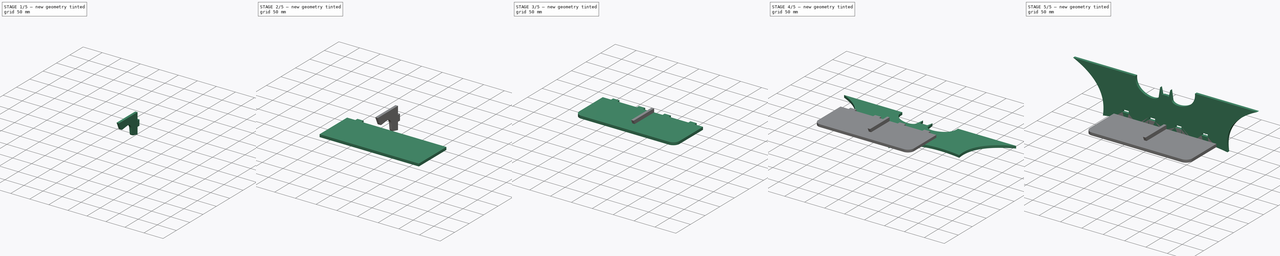
[diagram: build sequence overview — one tinted view per stage of 5, left to right]
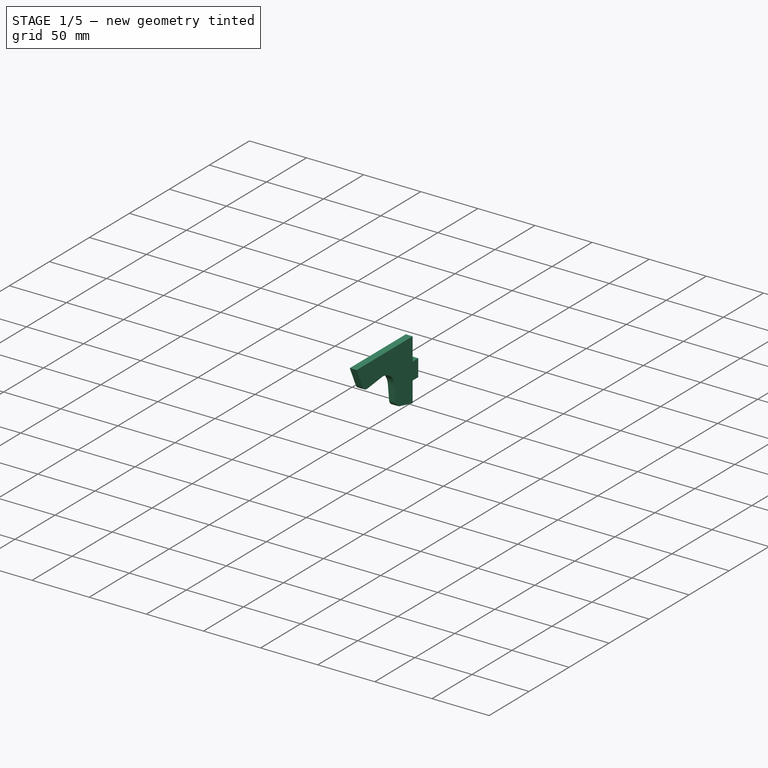
[diagram: stage 1 of 5 — iso view after this stage's code; geometry added in this stage tinted green]
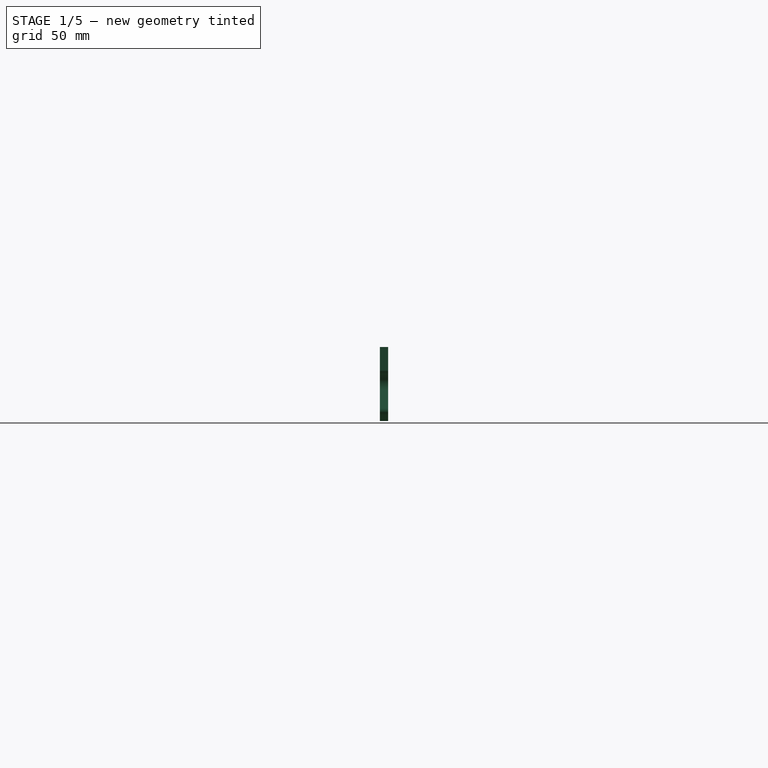
[diagram: stage 1 of 5 — front view after this stage's code; geometry added in this stage tinted green]
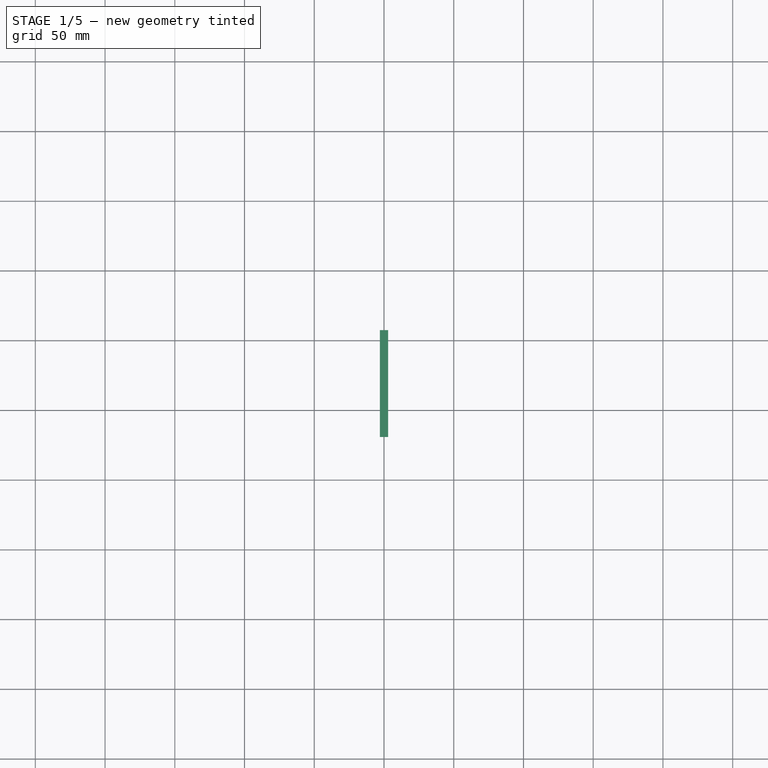
[diagram: stage 1 of 5 — top view after this stage's code; geometry added in this stage tinted green]
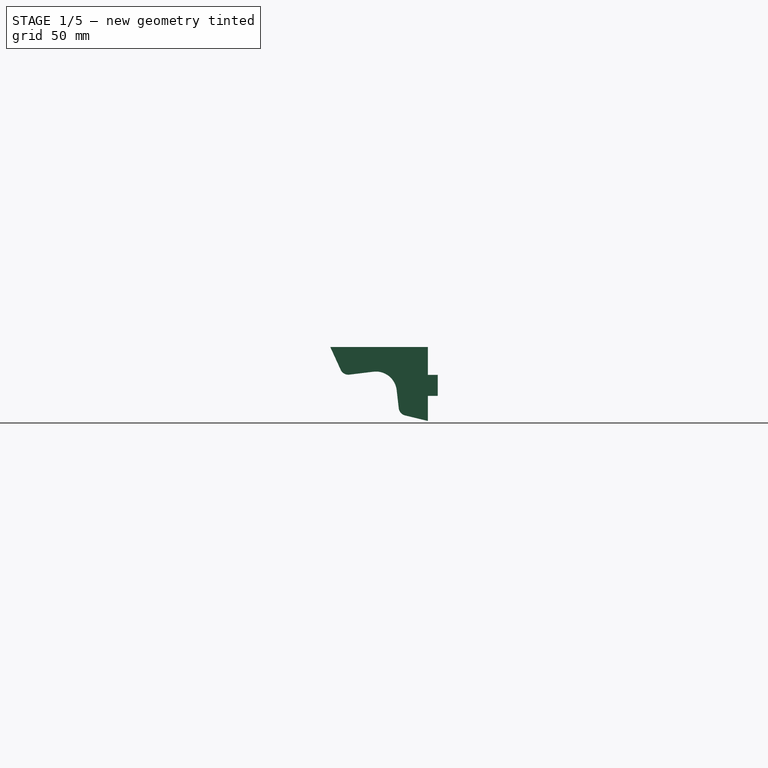
[diagram: stage 1 of 5 — right view after this stage's code; geometry added in this stage tinted green]
FCSTD DOCUMENT  (FreeCAD 0.18R4 (GitTag))
Label: Repisa Batman
License: All rights reserved
LicenseURL: http://en.wikipedia.org/wiki/All_rights_reserved
objects: Sketcher::SketchObject×9, PartDesign::Body×7, PartDesign::Pad×4, PartDesign::Pocket×3, PartDesign::Fillet×3, PartDesign::FeatureBase×3, Part::Part2DObjectPython×3, PartDesign::LinearPattern×2, App::Part×2, PartDesign::Mirrored×1, Part::Feature×1, Part::FeaturePython×1
note: 44 computed .brp shape members not serialized (recipe doc carries the construction recipe); baked Part::Feature solids carry a one-line shape summary decoded from their .brp

FEATURE [Sketcher::SketchObject] Sketch006
  MapMode = 5
  Placement = pos=(0,0,0) rot=(0.57735,0.57735,0.57735;2.0944rad)
  Support = -> [YZ_Plane004]
  sketch-geometry (10):
    g0: LineSegment StartX=-70 StartY=65 StartZ=0 EndX=-60.7345 EndY=44.672 EndZ=0
    g1: LineSegment StartX=-60.7345 StartY=44.672 StartZ=0 EndX=-24.1327 EndY=49.1456 EndZ=0
    g2: LineSegment StartX=-24.1327 StartY=49.1456 StartZ=0 EndX=-20.4455 EndY=16.9355 EndZ=0
    g3: LineSegment StartX=-20.4455 StartY=16.9355 StartZ=0 EndX=0 EndY=12 EndZ=0
    g4: LineSegment StartX=0 StartY=12 StartZ=0 EndX=0 EndY=30 EndZ=0
    g5: LineSegment StartX=0 StartY=65 StartZ=0 EndX=-70 EndY=65 EndZ=0
    g6: LineSegment StartX=0 StartY=45 StartZ=0 EndX=7 EndY=45 EndZ=0
    g7: LineSegment StartX=7 StartY=45 StartZ=0 EndX=7 EndY=30 EndZ=0
    g8: LineSegment StartX=7 StartY=30 StartZ=0 EndX=0 EndY=30 EndZ=0
    g9: LineSegment StartX=0 StartY=45 StartZ=0 EndX=0 EndY=65 EndZ=0
  constraints (23):
    c: Coincident(g1,g2)
    c: Coincident(g2,g3)
    c: Coincident(g3,g4)
    c: PointOnObject(g9,g-2)
    c: Vertical(g4)
    c: Coincident(g9,g5)
    c: Coincident(g5,g0)
    c: Horizontal(g5)
    c: DistanceY(g-1,g9) = 65
    c: DistanceX(g5,g5) = 70
    c: Horizontal(g6)
    c: Coincident(g6,g7)
    c: Vertical(g7)
    c: Coincident(g7,g8)
    c: Horizontal(g8)
    c: DistanceY(g7,g7) = 15
    c: Coincident(g4,g8)
    c: Coincident(g9,g6)
    c: Tangent(g4,g9)
    c: DistanceY(g-1,g6) = 45
    c: Coincident(g0,g1)
    c: DistanceX(g6,g6) = 7
    c: DistanceY(g-1,g3) = 12
FEATURE [PartDesign::Pad] Pad003
  Length = 6
  Length2 = 100
  Midplane = true
  Placement = pos=(0,0,0) rot=(0.57735,0.57735,0.57735;2.0944rad)
  Profile = -> Sketch006
  Refine = true
  Type = 0
FEATURE [PartDesign::Fillet] Fillet001
  Base = -> Pad003 [Edge11]
  BaseFeature = -> Pad003
  Placement = pos=(0,0,0) rot=(0.57735,0.57735,0.57735;2.0944rad)
  Radius = 15
FEATURE [PartDesign::Fillet] Fillet002
  Base = -> Fillet001 [Edge3,Edge27]
  BaseFeature = -> Fillet001
  Placement = pos=(0,0,0) rot=(0.57735,0.57735,0.57735;2.0944rad)
  Radius = 6
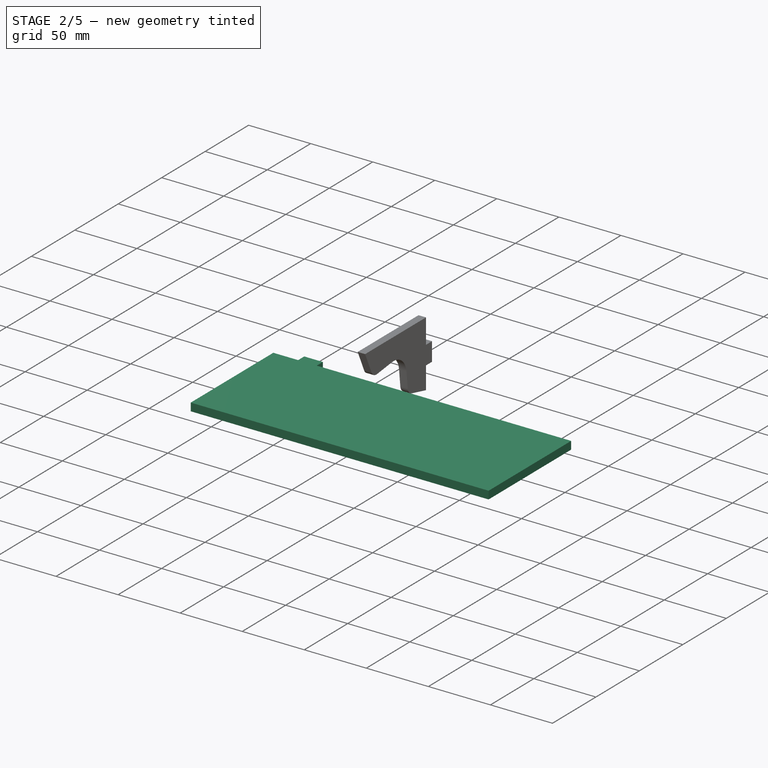
[diagram: stage 2 of 5 — iso view after this stage's code; geometry added in this stage tinted green]
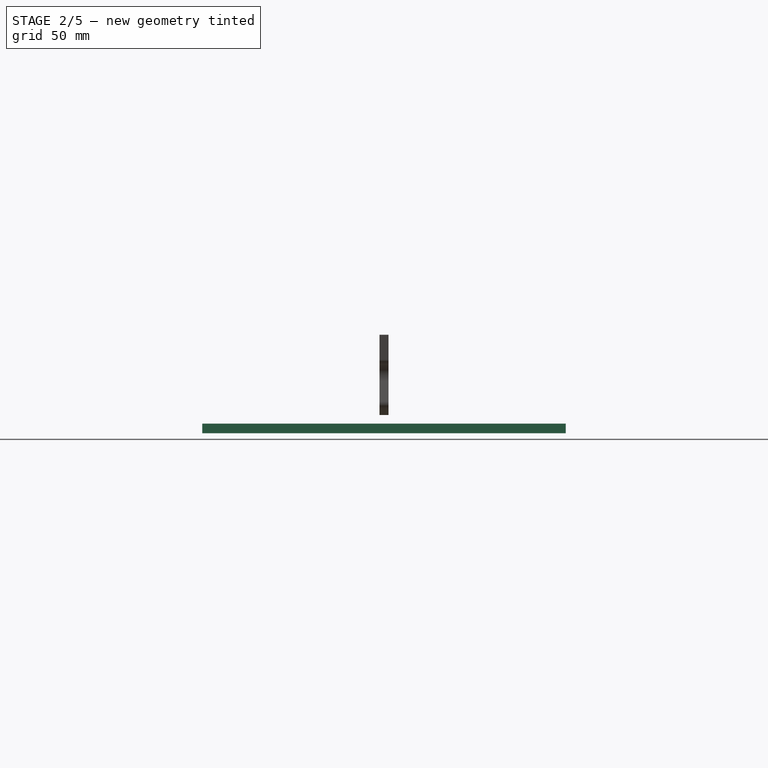
[diagram: stage 2 of 5 — front view after this stage's code; geometry added in this stage tinted green]
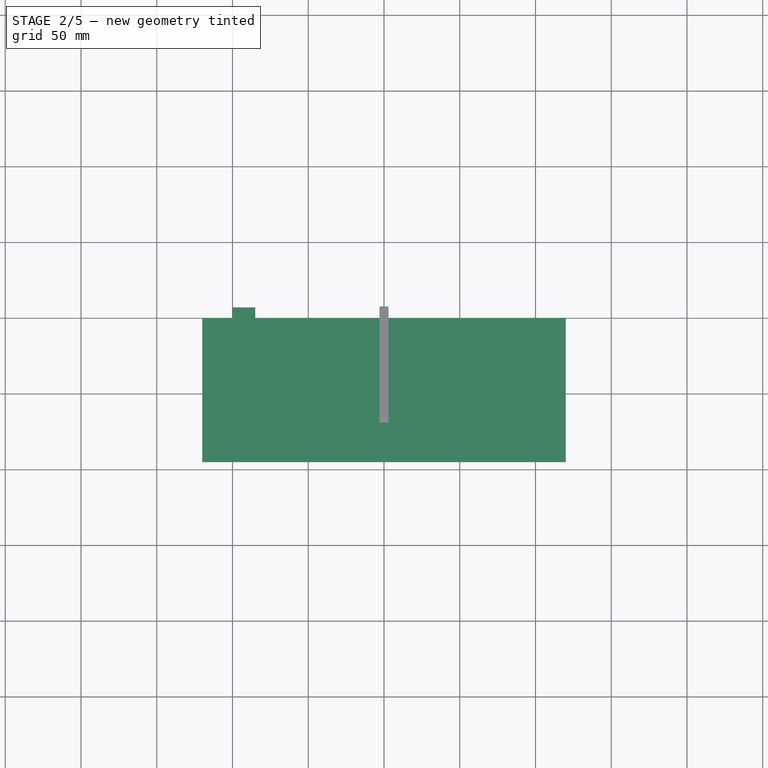
[diagram: stage 2 of 5 — top view after this stage's code; geometry added in this stage tinted green]
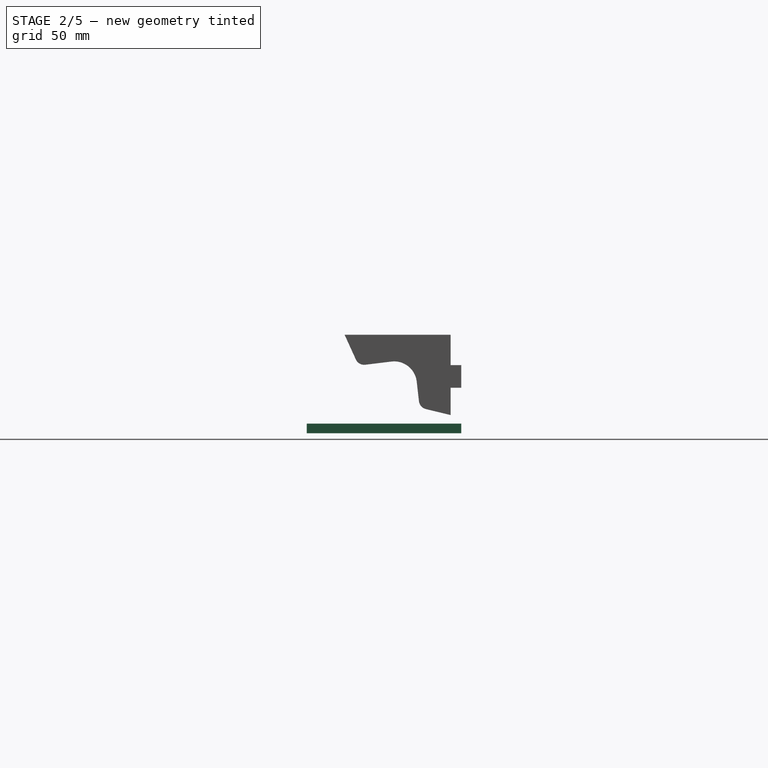
[diagram: stage 2 of 5 — right view after this stage's code; geometry added in this stage tinted green]
FEATURE [Sketcher::SketchObject] Sketch002
  MapMode = 5
  Support = -> [XY_Plane003]
  sketch-geometry (4):
    g0: LineSegment StartX=-120 StartY=0 StartZ=0 EndX=120 EndY=0 EndZ=0
    g1: LineSegment StartX=120 StartY=0 StartZ=0 EndX=120 EndY=-95 EndZ=0
    g2: LineSegment StartX=120 StartY=-95 StartZ=0 EndX=-120 EndY=-95 EndZ=0
    g3: LineSegment StartX=-120 StartY=-95 StartZ=0 EndX=-120 EndY=0 EndZ=0
  constraints (11):
    c: Coincident(g0,g1)
    c: Coincident(g1,g2)
    c: Coincident(g2,g3)
    c: Coincident(g3,g0)
    c: Horizontal(g0)
    c: Horizontal(g2)
    c: Vertical(g1)
    c: Vertical(g3)
    c: Symmetric(g0,g0,g-1)
    c: DistanceX(g0,g0) = 240
    c: DistanceY(g3,g3) = 95
FEATURE [PartDesign::Pad] Pad001
  Length = 6.35
  Length2 = 100
  Profile = -> Sketch002
  Refine = true
  Type = 0
FEATURE [Sketcher::SketchObject] Sketch003
  MapMode = 5
  Support = -> [XY_Plane003]
  sketch-geometry (4):
    g0: LineSegment StartX=-100 StartY=0 StartZ=0 EndX=-85 EndY=0 EndZ=0
    g1: LineSegment StartX=-85 StartY=0 StartZ=0 EndX=-85 EndY=7 EndZ=0
    g2: LineSegment StartX=-85 StartY=7 StartZ=0 EndX=-100 EndY=7 EndZ=0
    g3: LineSegment StartX=-100 StartY=7 StartZ=0 EndX=-100 EndY=0 EndZ=0
  constraints (12):
    c: Coincident(g0,g1)
    c: Coincident(g1,g2)
    c: Coincident(g2,g3)
    c: Coincident(g3,g0)
    c: Horizontal(g0)
    c: Horizontal(g2)
    c: Vertical(g1)
    c: Vertical(g3)
    c: PointOnObject(g0,g-1)
    c: DistanceY(g3,g3) = 7
    c: DistanceX(g2,g2) = 15
    c: DistanceX(g2,g-1) = 100
FEATURE [PartDesign::Pad] Pad002
  BaseFeature = -> Pad001
  Length = 6.35
  Length2 = 100
  Profile = -> Sketch003
  Refine = true
  Type = 0
FEATURE [PartDesign::Body] Body003  label="batman"
  BaseFeature = -> Body001
  Group = -> [Clone]
  Origin = -> Origin006
  Placement = pos=(0,1e-15,3) rot=(-1,0,0;1.5708rad)
  Tip = -> Clone
FEATURE [PartDesign::FeatureBase] Clone002
  BaseFeature = -> Body002
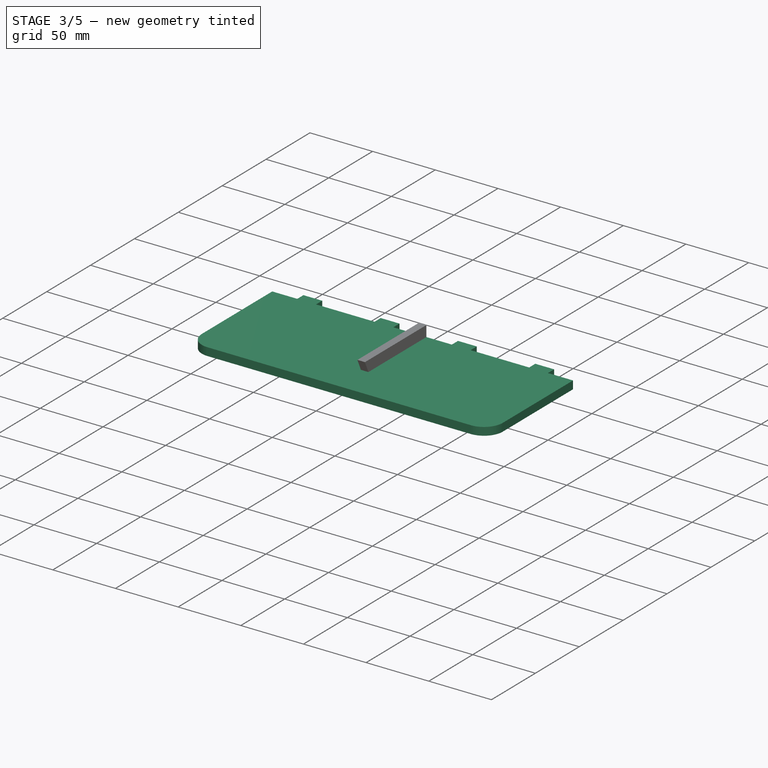
[diagram: stage 3 of 5 — iso view after this stage's code; geometry added in this stage tinted green]
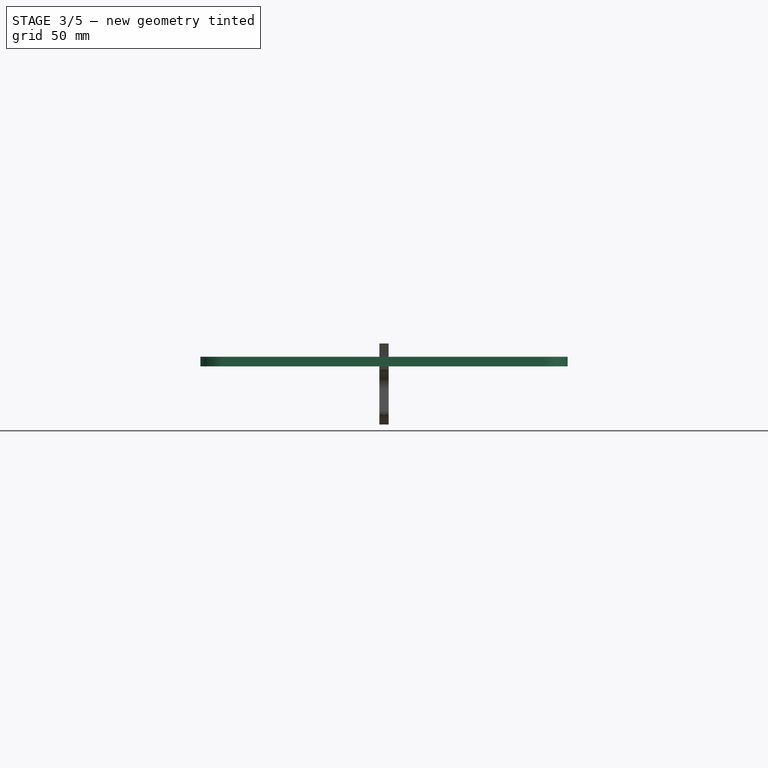
[diagram: stage 3 of 5 — front view after this stage's code; geometry added in this stage tinted green]
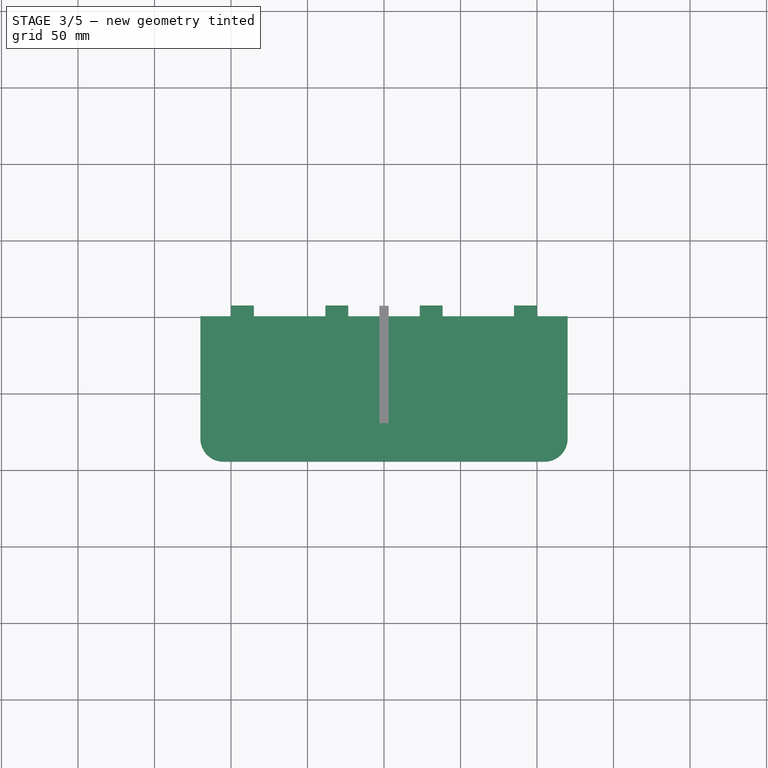
[diagram: stage 3 of 5 — top view after this stage's code; geometry added in this stage tinted green]
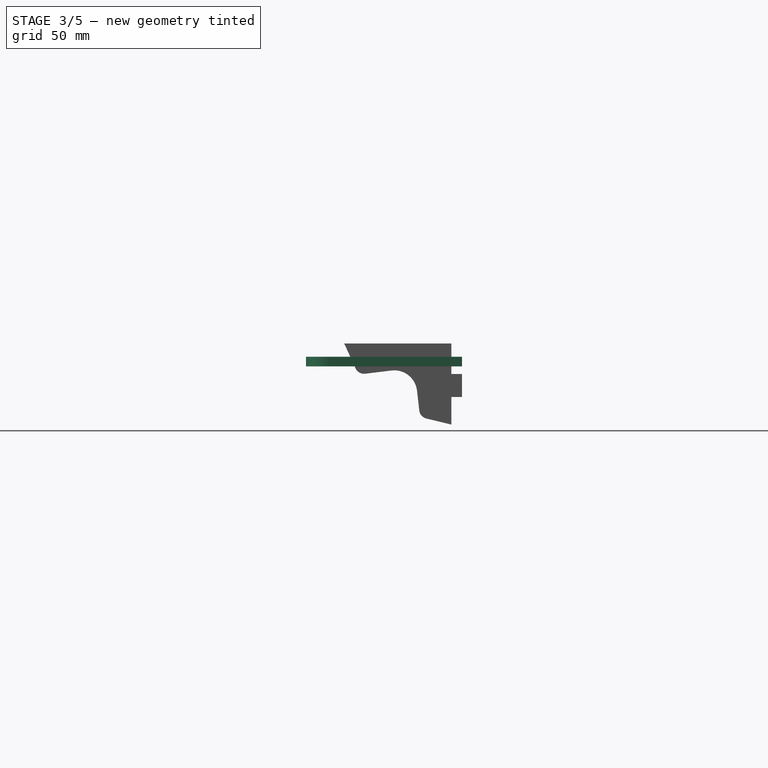
[diagram: stage 3 of 5 — right view after this stage's code; geometry added in this stage tinted green]
FEATURE [PartDesign::LinearPattern] LinearPattern
  BaseFeature = -> Pad002
  Direction = -> Sketch003 [H_Axis]
  Length = 185
  Occurrences = 4
  Originals = -> [Pad002]
  Refine = true
FEATURE [PartDesign::Body] Body005  label="soporte001"
  BaseFeature = -> Body002
  Group = -> [Clone002]
  Origin = -> Origin008
  Placement = pos=(-154,165.837,2e-14) rot=(0.707107,0,0.707107;3.14159rad)
  Tip = -> Clone002
FEATURE [Part::Feature] path4
  Placement = pos=(-86,-5e-14,223) rot=(1,0,0;1.5708rad)
  shape: bbox 173.4 x 5.082e-07 x 58.82 mm, 0 faces, 0 solids (baked)
FEATURE [Part::FeaturePython] Scale  # Draft clone (typed FeaturePython)
  Fuse = false
  Objects = -> [path4]
  Placement = pos=(-216,-1.24e-13,559) rot=(1,0,0;1.5708rad)
  Scale = (2.5,2.5,2.5)
FEATURE [PartDesign::Pocket] Pocket
  BaseFeature = -> LinearPattern
  Length = 6.35
  Length2 = 100
  Profile = -> Sketch004
  Refine = true
  Type = 0
FEATURE [PartDesign::Fillet] Fillet
  Base = -> Pocket [Edge49,Edge51]
  BaseFeature = -> Pocket
  Radius = 15
FEATURE [PartDesign::Body] Body  label="barra"
  Group = -> [Sketch002,Pad001,Sketch003,Pad002,LinearPattern,Sketch004,Pocket,Fillet]
  Origin = -> Origin003
  Placement = pos=(0,0,65) rot=(0,0,1;0rad)
  Tip = -> Fillet
FEATURE [App::Part] Part  label="Repisa Batman"
  Group = -> [Body001,Body,Body002,path4,Scale]
  Origin = -> Origin
FEATURE [PartDesign::FeatureBase] Clone001
  BaseFeature = -> Body
  Placement = pos=(0,0,50) rot=(0,0,1;0rad)
FEATURE [PartDesign::Body] Body004  label="barra001"
  BaseFeature = -> Body
  Group = -> [Clone001]
  Origin = -> Origin007
  Placement = pos=(44,254,-53) rot=(0,0,1;0rad)
  Tip = -> Clone001
FEATURE [App::Part] Part001  label="router"
  Group = -> [Body003,Body004,Body005]
  Origin = -> Origin005
FEATURE [Part::Part2DObjectPython] Shape2DView  # Draft 2D object (typed FeaturePython)
  Base = -> Body003
  HiddenLines = false
  InPlace = true
  Projection = (0,0,1)
  ProjectionMode = 0
  SegmentLength = 0.05
  Tessellation = false
  VisibleOnly = false
FEATURE [Part::Part2DObjectPython] Shape2DView001  # Draft 2D object (typed FeaturePython)
  Base = -> Body004
  HiddenLines = false
  InPlace = true
  Projection = (0,0,1)
  ProjectionMode = 0
  SegmentLength = 0.05
  Tessellation = false
  VisibleOnly = false
FEATURE [Part::Part2DObjectPython] Shape2DView002  # Draft 2D object (typed FeaturePython)
  Base = -> Body005
  HiddenLines = false
  InPlace = true
  Projection = (0,0,1)
  ProjectionMode = 0
  SegmentLength = 0.05
  Tessellation = false
  VisibleOnly = false
FEATURE [Sketcher::SketchObject] Sketch009
  sketch-geometry (71):
    g0: BSplineCurve PolesCount=3 KnotsCount=2 Degree=2 IsPeriodic=0
    g1: BSplineCurve PolesCount=3 KnotsCount=2 Degree=2 IsPeriodic=0
    g2: BSplineCurve PolesCount=3 KnotsCount=2 Degree=2 IsPeriodic=0
    g3: BSplineCurve PolesCount=3 KnotsCount=2 Degree=2 IsPeriodic=0
    g4: LineSegment StartX=215.559 StartY=149.145 StartZ=0 EndX=69.6461 EndY=149.145 EndZ=0
    g5: LineSegment StartX=-215.559 StartY=149.145 StartZ=0 EndX=-69.6461 EndY=149.145 EndZ=0
    g6: BSplineCurve PolesCount=4 KnotsCount=2 Degree=3 IsPeriodic=0
    g7: BSplineCurve PolesCount=4 KnotsCount=2 Degree=3 IsPeriodic=0
    g8: LineSegment StartX=15.1344 StartY=119.56 StartZ=0 EndX=11.8631 EndY=140.687 EndZ=0
    g9: LineSegment StartX=-15.1344 StartY=119.56 StartZ=0 EndX=-11.8631 EndY=140.687 EndZ=0
    g10: LineSegment StartX=11.8631 StartY=140.687 StartZ=0 EndX=8.29383 EndY=125.55 EndZ=0
    g11: LineSegment StartX=-11.8631 StartY=140.687 StartZ=0 EndX=-8.29383 EndY=125.55 EndZ=0
    g12: BSplineCurve PolesCount=3 KnotsCount=2 Degree=2 IsPeriodic=0
    g13: BSplineCurve PolesCount=3 KnotsCount=2 Degree=2 IsPeriodic=0
    g14: LineSegment StartX=-100 StartY=65 StartZ=0 EndX=-100 EndY=70.7 EndZ=0
    g15: LineSegment StartX=-85.3 StartY=65 StartZ=0 EndX=-100 EndY=65 EndZ=0
    g16: LineSegment StartX=-100 StartY=70.7 StartZ=0 EndX=-85.3 EndY=70.7 EndZ=0
    g17: LineSegment StartX=-85.3 StartY=70.7 StartZ=0 EndX=-85.3 EndY=65 EndZ=0
    g18: Circle CenterX=0 CenterY=55 CenterZ=0 NormalX=0 NormalY=0 NormalZ=1 AngleXU=0 Radius=1.8
    g19: LineSegment StartX=-38.3333 StartY=65 StartZ=0 EndX=-38.3333 EndY=70.7 EndZ=0
    g20: LineSegment StartX=-23.6333 StartY=65 StartZ=0 EndX=-38.3333 EndY=65 EndZ=0
    g21: LineSegment StartX=-38.3333 StartY=70.7 StartZ=0 EndX=-23.6333 EndY=70.7 EndZ=0
    g22: LineSegment StartX=-23.6333 StartY=70.7 StartZ=0 EndX=-23.6333 EndY=65 EndZ=0
    g23: LineSegment StartX=-2.85 StartY=30.3 StartZ=0 EndX=-2.85 EndY=45 EndZ=0
    g24: LineSegment StartX=2.85 StartY=30.3 StartZ=0 EndX=-2.85 EndY=30.3 EndZ=0
    g25: LineSegment StartX=2.85 StartY=45 StartZ=0 EndX=2.85 EndY=30.3 EndZ=0
    g26: LineSegment StartX=-2.85 StartY=45 StartZ=0 EndX=2.85 EndY=45 EndZ=0
    g27: LineSegment StartX=23.3333 StartY=65 StartZ=0 EndX=23.3333 EndY=70.7 EndZ=0
    g28: LineSegment StartX=38.0333 StartY=65 StartZ=0 EndX=23.3333 EndY=65 EndZ=0
    g29: LineSegment StartX=23.3333 StartY=70.7 StartZ=0 EndX=38.0333 EndY=70.7 EndZ=0
    g30: LineSegment StartX=38.0333 StartY=70.7 StartZ=0 EndX=38.0333 EndY=65 EndZ=0
    g31: LineSegment StartX=85 StartY=65 StartZ=0 EndX=85 EndY=70.7 EndZ=0
    g32: LineSegment StartX=99.7 StartY=65 StartZ=0 EndX=85 EndY=65 EndZ=0
    g33: LineSegment StartX=85 StartY=70.7 StartZ=0 EndX=99.7 EndY=70.7 EndZ=0
    g34: LineSegment StartX=99.7 StartY=70.7 StartZ=0 EndX=99.7 EndY=65 EndZ=0
    g35: LineSegment StartX=-108.795 StartY=222.208 StartZ=0 EndX=-106.688 EndY=204.973 EndZ=0
    g36: ArcOfCircle CenterX=-102.839 CenterY=222.936 CenterZ=0 NormalX=0 NormalY=0 NormalZ=1 AngleXU=1.5708 Radius=6 StartAngle=0.427665 EndAngle=1.69242
    g37: ArcOfCircle CenterX=-121.577 CenterY=203.153 CenterZ=0 NormalX=0 NormalY=0 NormalZ=1 AngleXU=1.5708 Radius=15 StartAngle=3.25557 EndAngle=4.83401
    g38: LineSegment StartX=-89 StartY=235.837 StartZ=0 EndX=-105.327 EndY=228.395 EndZ=0
    g39: LineSegment StartX=-119.871 StartY=188.251 StartZ=0 EndX=-132.898 EndY=186.76 EndZ=0
    g40: LineSegment StartX=-89 StartY=165.837 StartZ=0 EndX=-89 EndY=235.837 EndZ=0
    g41: ArcOfCircle CenterX=-132.216 CenterY=180.798 CenterZ=0 NormalX=0 NormalY=0 NormalZ=1 AngleXU=1.5708 Radius=6 StartAngle=0.113977 EndAngle=1.33393
    g42: LineSegment StartX=-109 StartY=165.837 StartZ=0 EndX=-89 EndY=165.837 EndZ=0
    g43: LineSegment StartX=-138.048 StartY=182.206 StartZ=0 EndX=-142 EndY=165.837 EndZ=0
    g44: LineSegment StartX=-109 StartY=165.837 StartZ=0 EndX=-109 EndY=158.837 EndZ=0
    g45: LineSegment StartX=-142 StartY=165.837 StartZ=0 EndX=-124 EndY=165.837 EndZ=0
    g46: LineSegment StartX=-109 StartY=158.837 StartZ=0 EndX=-124 EndY=158.837 EndZ=0
    g47: LineSegment StartX=-124 StartY=158.837 StartZ=0 EndX=-124 EndY=165.837 EndZ=0
    g48: LineSegment StartX=-76 StartY=174 StartZ=0 EndX=-76 EndY=254 EndZ=0
    g49: ArcOfCircle CenterX=-61 CenterY=174 CenterZ=0 NormalX=0 NormalY=0 NormalZ=1 AngleXU=-1.5708 Radius=15 StartAngle=4.71239 EndAngle=6.28319
    g50: LineSegment StartX=-76 StartY=254 StartZ=0 EndX=-56 EndY=254 EndZ=0
    g51: LineSegment StartX=149 StartY=159 StartZ=0 EndX=-61 EndY=159 EndZ=0
    g52: LineSegment StartX=-56 StartY=261 StartZ=0 EndX=-56 EndY=254 EndZ=0
    g53: ArcOfCircle CenterX=149 CenterY=174 CenterZ=0 NormalX=0 NormalY=0 NormalZ=1 AngleXU=-1.5708 Radius=15 StartAngle=0 EndAngle=1.5708
    g54: LineSegment StartX=-41 StartY=261 StartZ=0 EndX=-56 EndY=261 EndZ=0
    g55: LineSegment StartX=164 StartY=254 StartZ=0 EndX=164 EndY=174 EndZ=0
    g56: LineSegment StartX=-41 StartY=254 StartZ=0 EndX=-41 EndY=261 EndZ=0
    g57: LineSegment StartX=144 StartY=254 StartZ=0 EndX=164 EndY=254 EndZ=0
    g58: LineSegment StartX=-41 StartY=254 StartZ=0 EndX=5.66667 EndY=254 EndZ=0
    g59: LineSegment StartX=144 StartY=254 StartZ=0 EndX=144 EndY=261 EndZ=0
    g60: LineSegment StartX=5.66667 StartY=261 StartZ=0 EndX=5.66667 EndY=254 EndZ=0
    g61: LineSegment StartX=144 StartY=261 StartZ=0 EndX=129 EndY=261 EndZ=0
    g62: LineSegment StartX=20.6667 StartY=261 StartZ=0 EndX=5.66667 EndY=261 EndZ=0
    g63: LineSegment StartX=129 StartY=261 StartZ=0 EndX=129 EndY=254 EndZ=0
    g64: LineSegment StartX=20.6667 StartY=254 StartZ=0 EndX=20.6667 EndY=261 EndZ=0
    g65: LineSegment StartX=82.3333 StartY=254 StartZ=0 EndX=129 EndY=254 EndZ=0
    g66: LineSegment StartX=20.6667 StartY=254 StartZ=0 EndX=67.3333 EndY=254 EndZ=0
    g67: LineSegment StartX=82.3333 StartY=254 StartZ=0 EndX=82.3333 EndY=261 EndZ=0
    g68: LineSegment StartX=67.3333 StartY=261 StartZ=0 EndX=67.3333 EndY=254 EndZ=0
    g69: LineSegment StartX=82.3333 StartY=261 StartZ=0 EndX=67.3333 EndY=261 EndZ=0
    g70: Circle CenterX=44 CenterY=239 CenterZ=0 NormalX=0 NormalY=0 NormalZ=1 AngleXU=0 Radius=1.8
FEATURE [PartDesign::Body] Body006
  Group = -> [Shape2DView002,Shape2DView001,Shape2DView,Sketch009]
  Origin = -> Origin009
  Placement = pos=(0,-294,0) rot=(0,0,1;0rad)
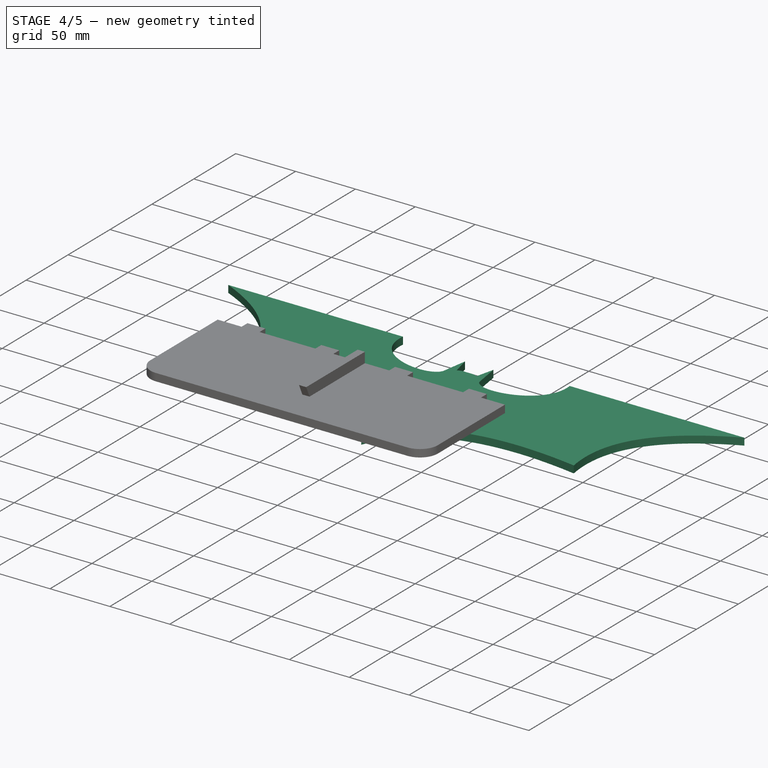
[diagram: stage 4 of 5 — iso view after this stage's code; geometry added in this stage tinted green]
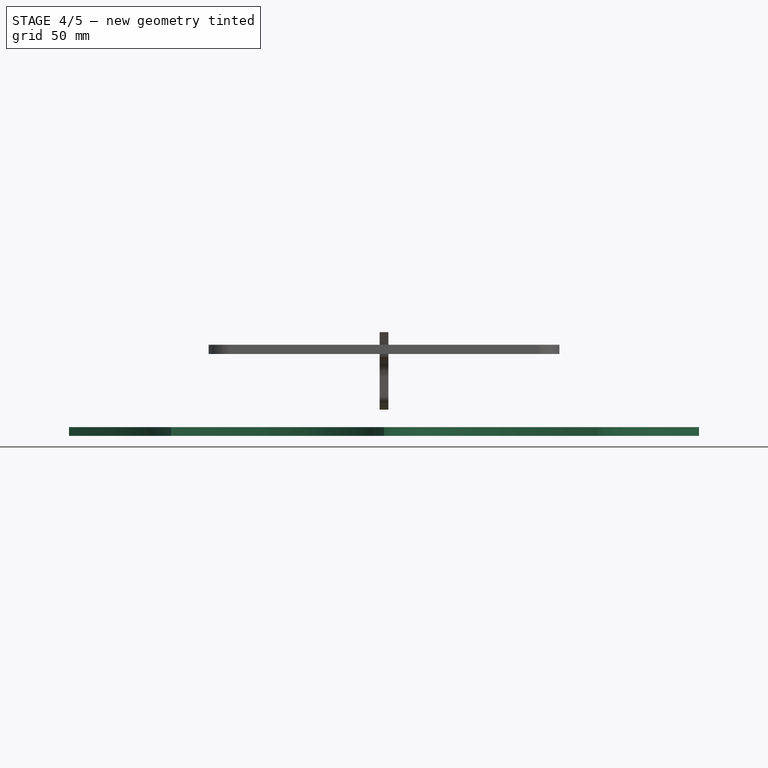
[diagram: stage 4 of 5 — front view after this stage's code; geometry added in this stage tinted green]
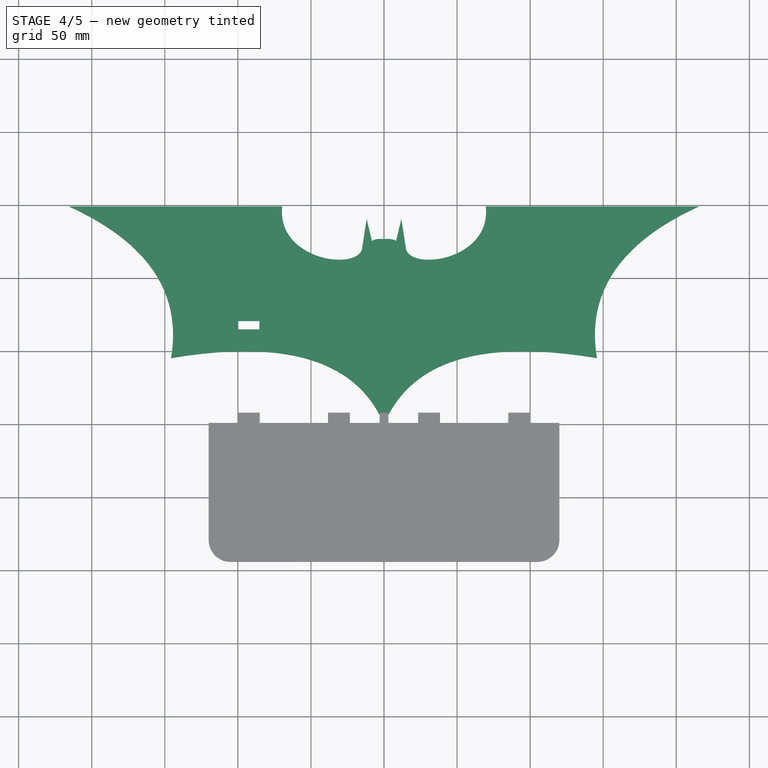
[diagram: stage 4 of 5 — top view after this stage's code; geometry added in this stage tinted green]
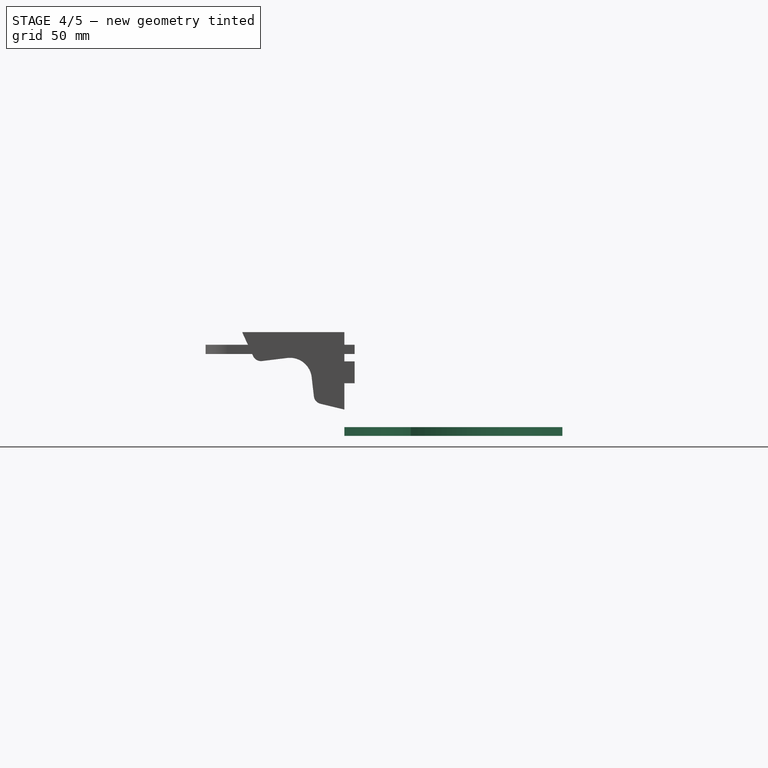
[diagram: stage 4 of 5 — right view after this stage's code; geometry added in this stage tinted green]
FEATURE [Sketcher::SketchObject] Sketch
  MapMode = 5
  Support = -> [XY_Plane002]
  sketch-geometry (4):
    g0: LineSegment StartX=-125 StartY=90 StartZ=0 EndX=125 EndY=90 EndZ=0
    g1: LineSegment StartX=125 StartY=90 StartZ=0 EndX=125 EndY=0 EndZ=0
    g2: LineSegment StartX=125 StartY=0 StartZ=0 EndX=-125 EndY=0 EndZ=0
    g3: LineSegment StartX=-125 StartY=0 StartZ=0 EndX=-125 EndY=90 EndZ=0
  constraints (11):
    c: Coincident(g0,g1)
    c: Coincident(g1,g2)
    c: Coincident(g2,g3)
    c: Coincident(g3,g0)
    c: Horizontal(g0)
    c: Horizontal(g2)
    c: Vertical(g1)
    c: Vertical(g3)
    c: Symmetric(g2,g1,g-1)
    c: DistanceX(g2,g2) = 250
    c: DistanceY(g1,g1) = 90
FEATURE [Sketcher::SketchObject] Sketch001
  MapMode = 5
  Support = -> [XY_Plane002]
  sketch-geometry (29):
    g0: Circle [constr] CenterX=0 CenterY=0 CenterZ=0 NormalX=0 NormalY=0 NormalZ=1 AngleXU=0 Radius=10
    g1: Circle [constr] CenterX=27.3162 CenterY=65.3547 CenterZ=0 NormalX=0 NormalY=0 NormalZ=1 AngleXU=0 Radius=10
    g2: Circle [constr] CenterX=145.744 CenterY=45.3454 CenterZ=0 NormalX=0 NormalY=0 NormalZ=1 AngleXU=0 Radius=10
    g3: BSplineCurve PolesCount=3 KnotsCount=2 Degree=2 IsPeriodic=0
    g4: GeomPoint [constr] X=0 Y=0 Z=0
    g5: GeomPoint [constr] X=145.744 Y=45.3454 Z=0
    g6: Circle [constr] CenterX=145.744 CenterY=45.3454 CenterZ=0 NormalX=0 NormalY=0 NormalZ=1 AngleXU=0 Radius=6
    g7: Circle [constr] CenterX=134.424 CenterY=112.177 CenterZ=0 NormalX=0 NormalY=0 NormalZ=1 AngleXU=0 Radius=6
    g8: Circle [constr] CenterX=215.559 CenterY=149.145 CenterZ=0 NormalX=0 NormalY=0 NormalZ=1 AngleXU=0 Radius=6
    g9: BSplineCurve PolesCount=3 KnotsCount=2 Degree=2 IsPeriodic=0
    g10: GeomPoint [constr] X=145.744 Y=45.3454 Z=0
    g11: GeomPoint [constr] X=215.559 Y=149.145 Z=0
    g12: LineSegment StartX=215.559 StartY=149.145 StartZ=0 EndX=69.6461 EndY=149.145 EndZ=0
    g13-g16: Circle [constr] x4 (B-spline internal-alignment scaffolding for g17; pole/knot coordinates omitted)
    g17: BSplineCurve PolesCount=4 KnotsCount=2 Degree=3 IsPeriodic=0
    g18: GeomPoint [constr] X=69.6461 Y=149.145 Z=0
    g19: GeomPoint [constr] X=15.1344 Y=119.56 Z=0
    g20: LineSegment StartX=15.1344 StartY=119.56 StartZ=0 EndX=11.8631 EndY=140.687 EndZ=0
    g21: LineSegment StartX=11.8631 StartY=140.687 StartZ=0 EndX=8.29383 EndY=125.55 EndZ=0
    g22: Circle [constr] CenterX=8.29383 CenterY=125.55 CenterZ=0 NormalX=0 NormalY=0 NormalZ=1 AngleXU=0 Radius=1
    g23: Circle [constr] CenterX=5.47652 CenterY=127.326 CenterZ=0 NormalX=0 NormalY=0 NormalZ=1 AngleXU=0 Radius=1
    g24: Circle [constr] CenterX=0 CenterY=126.836 CenterZ=0 NormalX=0 NormalY=0 NormalZ=1 AngleXU=0 Radius=1
    g25: BSplineCurve PolesCount=3 KnotsCount=2 Degree=2 IsPeriodic=0
    g26: GeomPoint [constr] X=8.29383 Y=125.55 Z=0
    g27: GeomPoint [constr] X=0 Y=126.836 Z=0
    g28: LineSegment StartX=0 StartY=126.836 StartZ=0 EndX=0 EndY=0 EndZ=0
  constraints (42):
    c: Coincident(g3,g-1)
    c: Radius(g0) = 10
    c: Equal(g0,g1)
    c: Equal(g0,g2)
    c: InternalAlignment(g0,g3)
    c: InternalAlignment(g1,g3)
    c: InternalAlignment(g2,g3)
    c: InternalAlignment(g4,g3)
    c: InternalAlignment(g5,g3)
    c: Coincident(g9,g3)
    c: Radius(g6) = 6
    c: Equal(g6,g7)
    c: Equal(g6,g8)
    c: InternalAlignment(g6,g9)
    c: InternalAlignment(g7,g9)
    c: InternalAlignment(g8,g9)
    c: InternalAlignment(g10,g9)
    c: InternalAlignment(g11,g9)
    c: Coincident(g12,g9)
    c: Horizontal(g12)
    c: Coincident(g17,g12)
    c: Radius(g13) = 3
    c: Equal(g13,g14)
    c: Equal(g13,g15)
    c: Equal(g13,g16)
    c: InternalAlignment(g13-g16 -> g17) x4
    c: InternalAlignment(g18,g17)
    c: InternalAlignment(g19,g17)
    c: Coincident(g20,g17)
    c: Coincident(g20,g21)
    c: Coincident(g25,g21)
    c: Radius(g22) = 1
    c: Equal(g22,g23)
    c: Equal(g22,g24)
    c: InternalAlignment(g22,g25)
    c: InternalAlignment(g23,g25)
    c: InternalAlignment(g24,g25)
    c: InternalAlignment(g26,g25)
    c: InternalAlignment(g27,g25)
    c: Coincident(g28,g25)
    c: Coincident(g28,g3)
    c: Vertical(g28)
FEATURE [PartDesign::Pad] Pad
  Length = 6
  Length2 = 100
  Profile = -> Sketch001
  Refine = true
  Reversed = true
  Type = 0
FEATURE [PartDesign::Mirrored] Mirrored
  BaseFeature = -> Pad
  MirrorPlane = -> Sketch001 [V_Axis]
  Originals = -> [Pad]
  Refine = true
FEATURE [Sketcher::SketchObject] Sketch004
  MapMode = 5
  Placement = pos=(0,0,6.35) rot=(0,0,1;0rad)
  Support = -> [LinearPattern]
  sketch-geometry (1):
    g0: Circle CenterX=0 CenterY=-15 CenterZ=0 NormalX=0 NormalY=0 NormalZ=1 AngleXU=0 Radius=1.8
  constraints (3):
    c: PointOnObject(g0,g-2)
    c: Radius(g0) = 1.8
    c: DistanceY(g0,g-1) = 15
FEATURE [Sketcher::SketchObject] Sketch005
  MapMode = 5
  Support = -> [Mirrored]
  sketch-geometry (4):
    g0: LineSegment StartX=-100 StartY=70.7 StartZ=0 EndX=-85.3 EndY=70.7 EndZ=0
    g1: LineSegment StartX=-85.3 StartY=70.7 StartZ=0 EndX=-85.3 EndY=65 EndZ=0
    g2: LineSegment StartX=-85.3 StartY=65 StartZ=0 EndX=-100 EndY=65 EndZ=0
    g3: LineSegment StartX=-100 StartY=65 StartZ=0 EndX=-100 EndY=70.7 EndZ=0
  constraints (12):
    c: Coincident(g0,g1)
    c: Coincident(g1,g2)
    c: Coincident(g2,g3)
    c: Coincident(g3,g0)
    c: Horizontal(g0)
    c: Horizontal(g2)
    c: Vertical(g1)
    c: Vertical(g3)
    c: DistanceY(g-1,g1) = 65
    c: DistanceX(g0,g0) = 14.7
    c: DistanceY(g1,g1) = 5.7
    c: DistanceX(g2,g-1) = 100
FEATURE [PartDesign::Pocket] Pocket001
  BaseFeature = -> Mirrored
  Length = 6.35
  Length2 = 100
  Profile = -> Sketch005
  Refine = true
  Type = 0
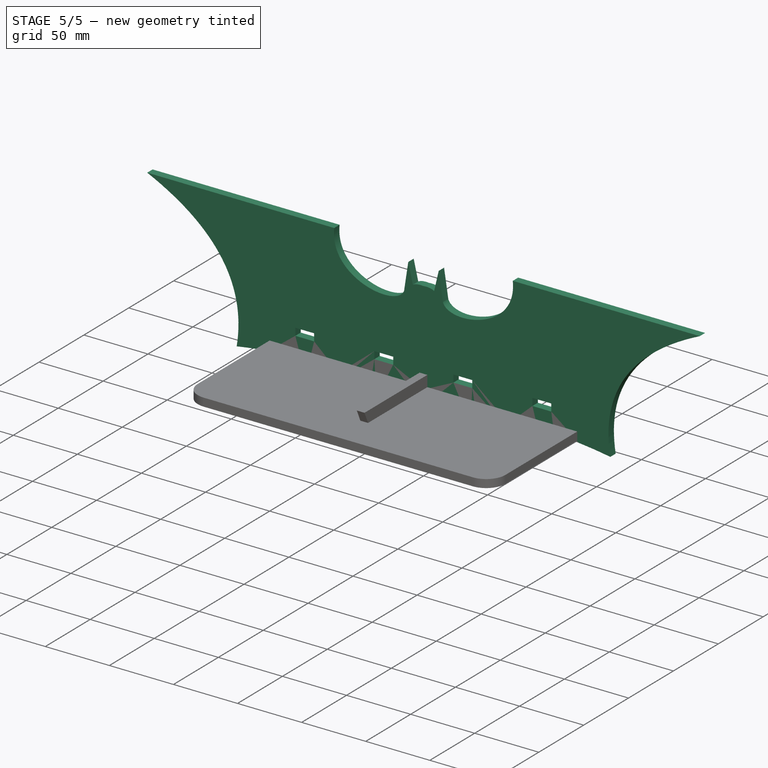
[diagram: stage 5 of 5 — iso view after this stage's code; geometry added in this stage tinted green]
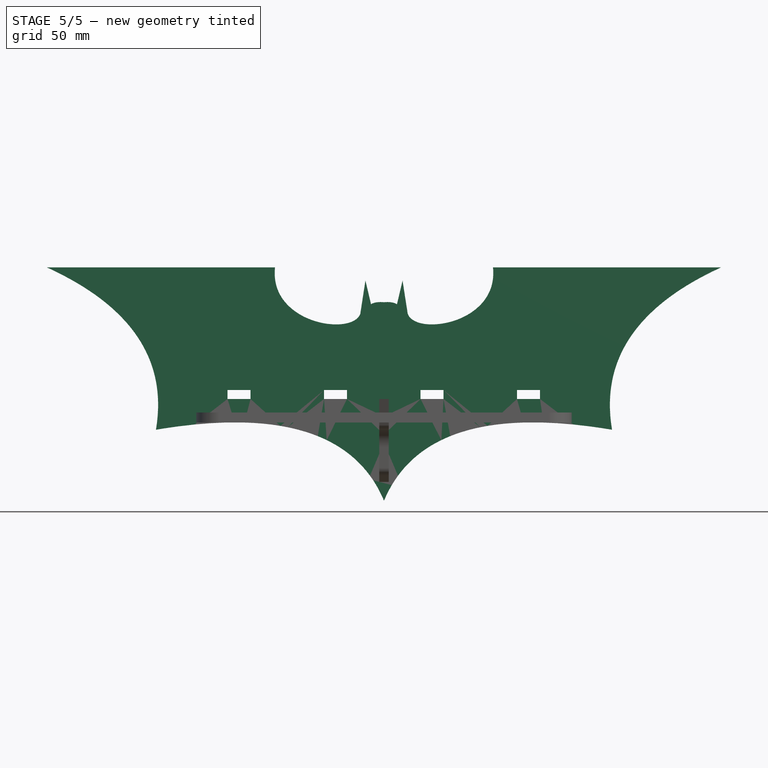
[diagram: stage 5 of 5 — front view after this stage's code; geometry added in this stage tinted green]
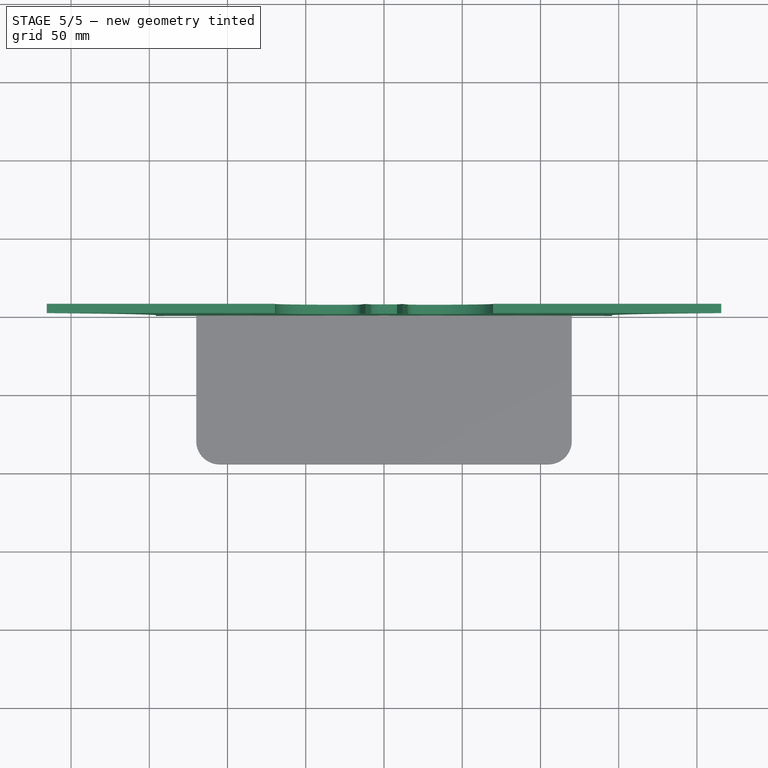
[diagram: stage 5 of 5 — top view after this stage's code; geometry added in this stage tinted green]
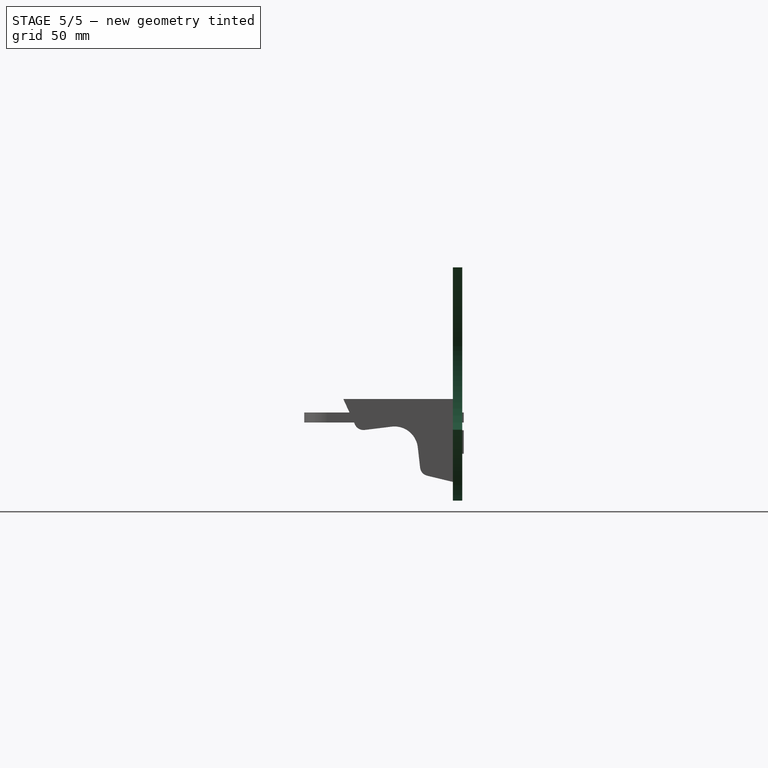
[diagram: stage 5 of 5 — right view after this stage's code; geometry added in this stage tinted green]
FEATURE [PartDesign::LinearPattern] LinearPattern001
  BaseFeature = -> Pocket001
  Direction = -> Sketch005 [H_Axis]
  Length = 185
  Occurrences = 4
  Originals = -> [Pocket001]
  Refine = true
FEATURE [PartDesign::Body] Body002  label="soporte"
  Group = -> [Sketch006,Pad003,Fillet001,Fillet002]
  Origin = -> Origin004
  Tip = -> Fillet002
FEATURE [Sketcher::SketchObject] Sketch007
  MapMode = 5
  Support = -> [LinearPattern001]
  sketch-geometry (5):
    g0: LineSegment StartX=-2.85 StartY=45 StartZ=0 EndX=2.85 EndY=45 EndZ=0
    g1: LineSegment StartX=2.85 StartY=45 StartZ=0 EndX=2.85 EndY=30.3 EndZ=0
    g2: LineSegment StartX=2.85 StartY=30.3 StartZ=0 EndX=-2.85 EndY=30.3 EndZ=0
    g3: LineSegment StartX=-2.85 StartY=30.3 StartZ=0 EndX=-2.85 EndY=45 EndZ=0
    g4: Circle CenterX=0 CenterY=55 CenterZ=0 NormalX=0 NormalY=0 NormalZ=1 AngleXU=0 Radius=1.8
  constraints (14):
    c: Coincident(g0,g1)
    c: Coincident(g1,g2)
    c: Coincident(g2,g3)
    c: Coincident(g3,g0)
    c: Horizontal(g2)
    c: Vertical(g1)
    c: Vertical(g3)
    c: DistanceY(g1,g1) = 14.7
    c: DistanceX(g0,g0) = 5.7
    c: Symmetric(g0,g0,g-2)
    c: DistanceY(g-1,g0) = 45
    c: PointOnObject(g4,g-2)
    c: DistanceY(g-1,g4) = 55
    c: Radius(g4) = 1.8
FEATURE [PartDesign::Pocket] Pocket002
  BaseFeature = -> LinearPattern001
  Length = 6.35
  Length2 = 100
  Profile = -> Sketch007
  Refine = true
  Type = 0
FEATURE [PartDesign::Body] Body001  label="Batman"
  Group = -> [Sketch,Sketch001,Pad,Mirrored,Sketch005,Pocket001,LinearPattern001,Sketch007,Pocket002]
  Origin = -> Origin002
  Placement = pos=(0,0,0) rot=(1,0,0;1.5708rad)
  Tip = -> Pocket002
FEATURE [PartDesign::FeatureBase] Clone
  BaseFeature = -> Body001
  Placement = pos=(0,0,0) rot=(1,0,0;1.5708rad)
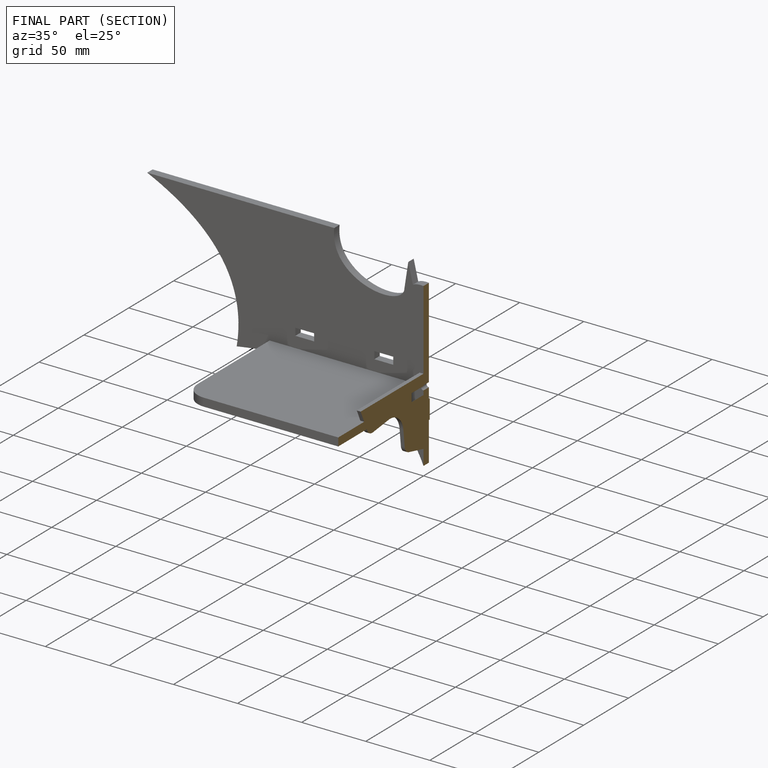
[diagram: finished part — half-section view (interior)]
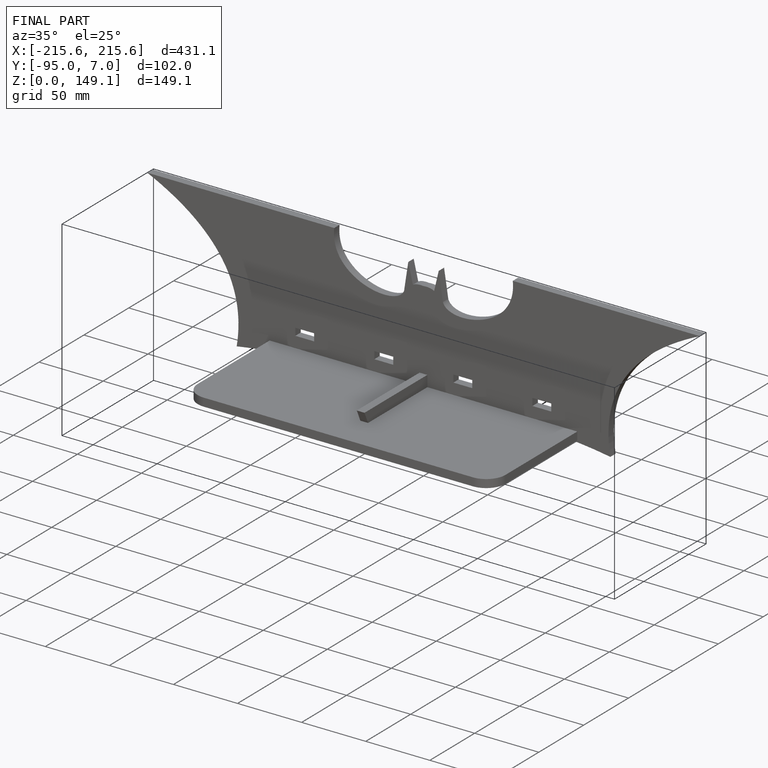
[diagram: finished part — iso view with bounding-box wireframe]
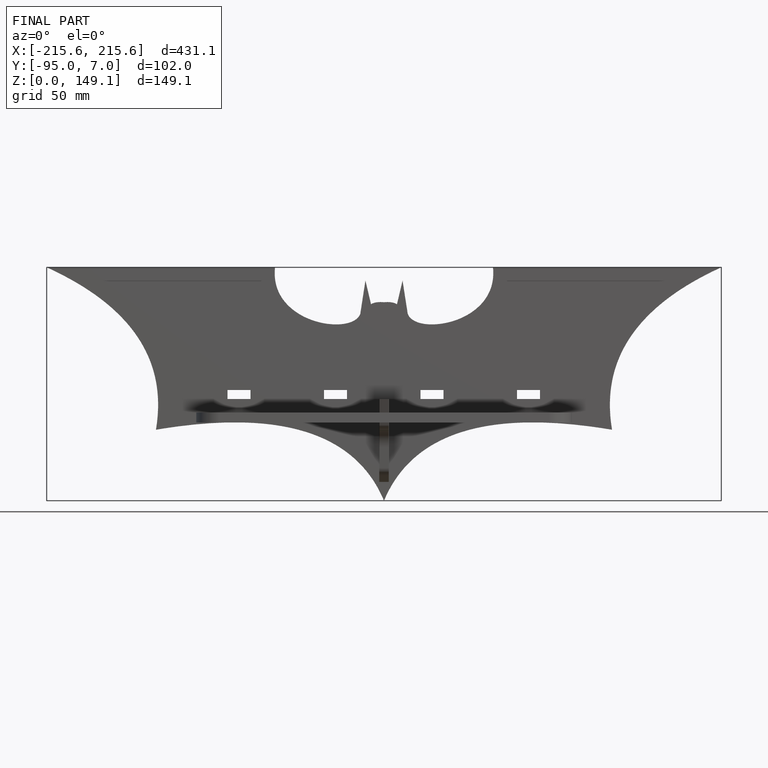
[diagram: finished part — front view with bounding-box wireframe]
